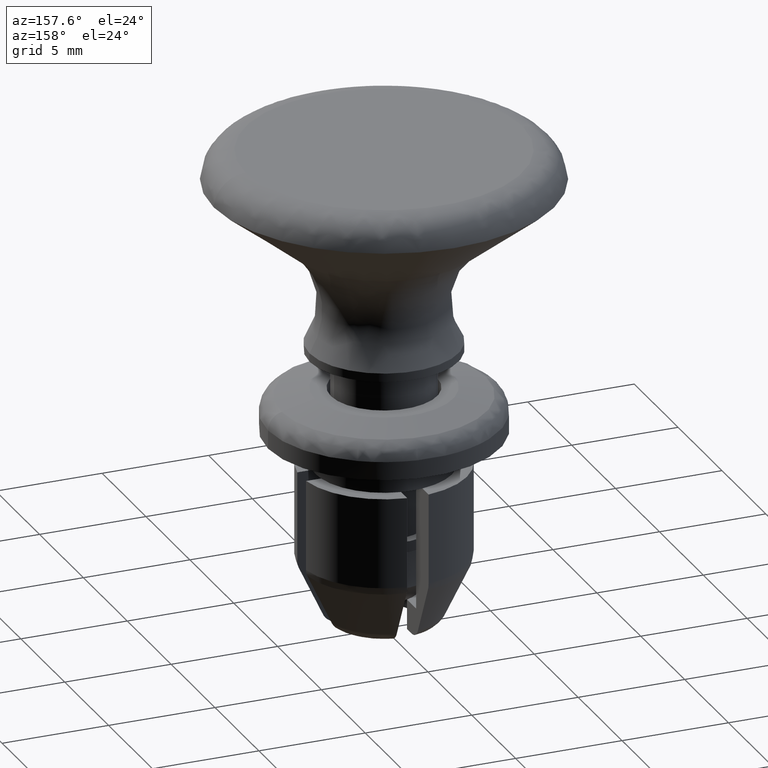
[diagram: clean part render]
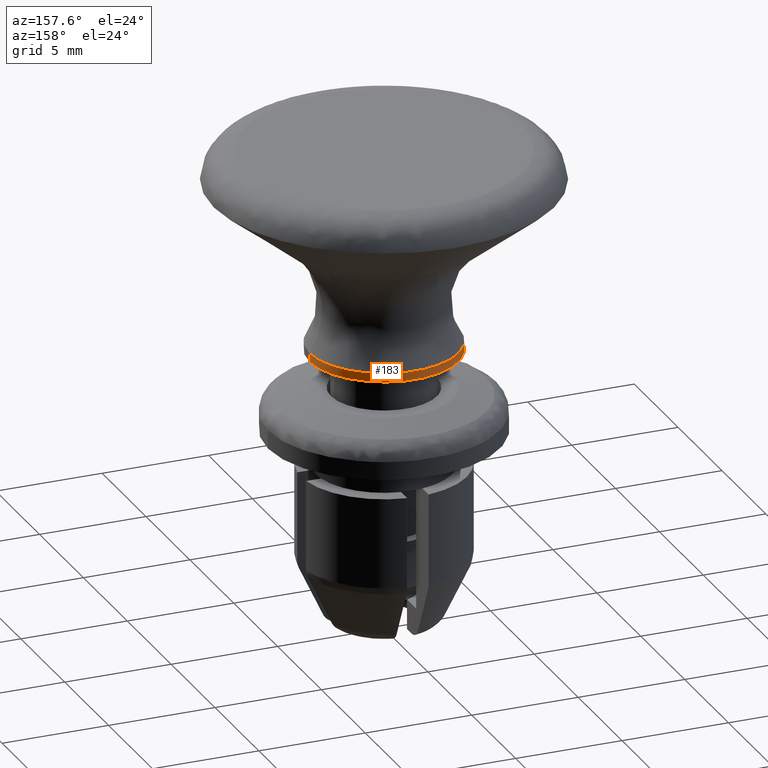
[diagram: same view with one face highlighted and labeled with its STEP entity id]
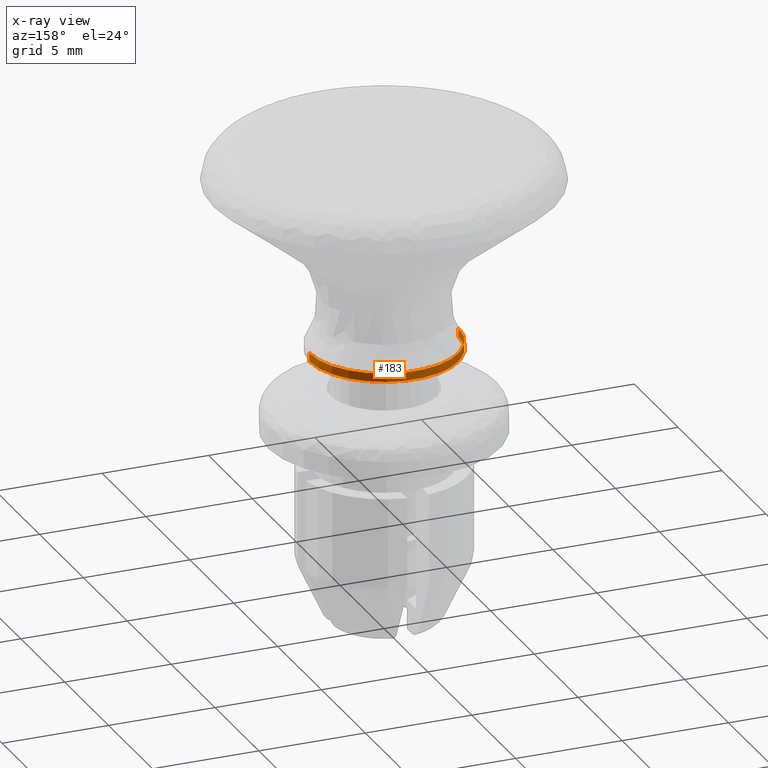
[diagram: x-ray of the same camera — body ghosted, the highlighted face saturated]
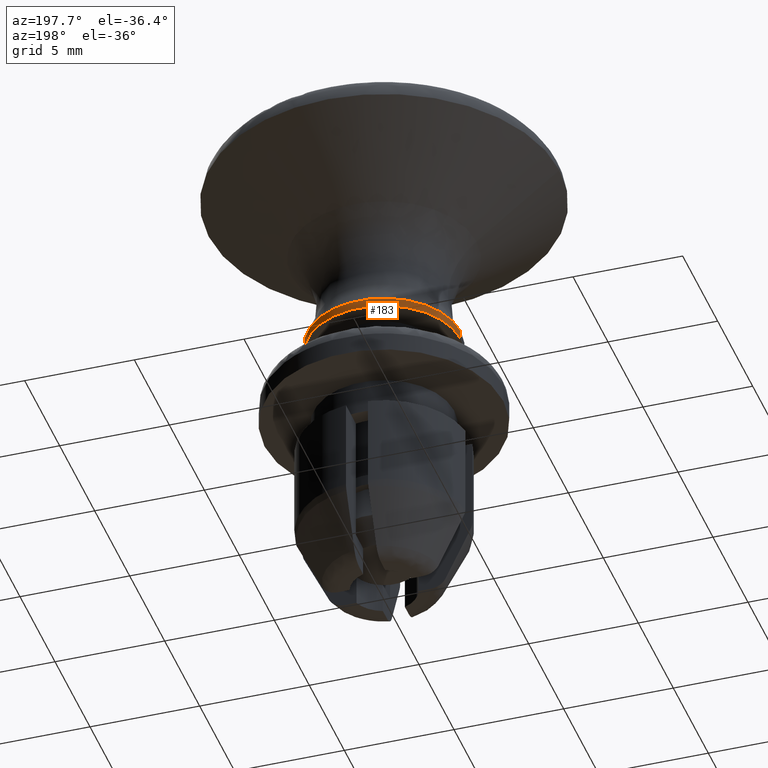
[diagram: same view with one face highlighted and labeled with its STEP entity id]
A machine part, auxiliary view. The second image highlights one B-rep face of the part: STEP entity #183.
The next image is the same camera in x-ray: the body ghosted, the highlighted face saturated — about 0% of this face is hidden behind the body in this view.
A second angle (auxiliary view) of the same face is appended — the face is thin or edge-on in the first view.
In plain terms, the highlighted cylindrical surface (partial cylindrical patch) has radius 3.5 mm, axis along (0, 0, 1).
Its self-contained STEP definition (entity closure, byte-faithful):
#183=ADVANCED_FACE('',(#909),#908,.T.);
#908=CYLINDRICAL_SURFACE('',#1533,3.50000000000E+00);
#909=FACE_OUTER_BOUND('',#1534,.T.);
#1530=CARTESIAN_POINT('',(0.00000000000E+00,0.00000000000E+00,0.00000000000E+00));
#1531=DIRECTION('',(-0.00000000000E+00,-0.00000000000E+00,1.00000000000E+00));
#1532=DIRECTION('',(1.00000000000E+00,-0.00000000000E+00,-0.00000000000E+00));
#1533=AXIS2_PLACEMENT_3D('',#1530,#1531,#1532);
#1534=EDGE_LOOP('',(#2012,#2013,#2014,#2015));
#2012=ORIENTED_EDGE('',*,*,#2234,.T.);
#2013=ORIENTED_EDGE('',*,*,#2235,.F.);
#2014=ORIENTED_EDGE('',*,*,#2214,.F.);
#2015=ORIENTED_EDGE('',*,*,#2236,.T.);
#2214=EDGE_CURVE('',#3330,#3331,#3332,.T.);
#2234=EDGE_CURVE('',#3460,#3461,#3462,.T.);
#2235=EDGE_CURVE('',#3331,#3461,#3468,.T.);
#2236=EDGE_CURVE('',#3330,#3460,#3474,.T.);
#3330=VERTEX_POINT('',#4276);
#3331=VERTEX_POINT('',#4277);
#3332=CIRCLE('',#4281,3.50000000000E+00);
#3460=VERTEX_POINT('',#4346);
#3461=VERTEX_POINT('',#4347);
#3462=CIRCLE('',#4351,3.50000000000E+00);
#3468=(BOUNDED_CURVE() B_SPLINE_CURVE(1,(#4352,#4353),.UNSPECIFIED.,.F.,.F.) B_SPLINE_CURVE_WITH_KNOTS((2,2),(8.33332538610E-02,9.16666666064E-01),.UNSPECIFIED.) CURVE() GEOMETRIC_REPRESENTATION_ITEM() RATIONAL_B_SPLINE_CURVE((1.00000000000E+00,1.00000000000E+00)) REPRESENTATION_ITEM('') );
#3474=(BOUNDED_CURVE() B_SPLINE_CURVE(1,(#4354,#4355),.UNSPECIFIED.,.F.,.F.) B_SPLINE_CURVE_WITH_KNOTS((2,2),(8.33333333333E-02,9.16666666667E-01),.UNSPECIFIED.) CURVE() GEOMETRIC_REPRESENTATION_ITEM() RATIONAL_B_SPLINE_CURVE((7.50000000000E-01,7.50000000000E-01)) REPRESENTATION_ITEM('') );
#4276=CARTESIAN_POINT('',(-3.50000000000E+00,0.00000000000E+00,-9.50000000000E+00));
#4277=CARTESIAN_POINT('',(3.50000000000E+00,1.48029736617E-16,-9.50000000000E+00));
#4278=CARTESIAN_POINT('',(0.00000000000E+00,0.00000000000E+00,-9.50000000000E+00));
#4279=DIRECTION('',(-0.00000000000E+00,0.00000000000E+00,-1.00000000000E+00));
#4280=DIRECTION('',(-1.00000000000E+00,-1.22460635382E-16,0.00000000000E+00));
#4281=AXIS2_PLACEMENT_3D('',#4278,#4279,#4280);
#4346=CARTESIAN_POINT('',(-3.50000000000E+00,0.00000000000E+00,-9.10059179423E+00));
#4347=CARTESIAN_POINT('',(3.50000000000E+00,1.48029736617E-16,-9.10059179423E+00));
#4348=CARTESIAN_POINT('',(0.00000000000E+00,0.00000000000E+00,-9.10059179423E+00));
#4349=DIRECTION('',(-0.00000000000E+00,0.00000000000E+00,-1.00000000000E+00));
#4350=DIRECTION('',(-1.00000000000E+00,-1.22460635382E-16,0.00000000000E+00));
#4351=AXIS2_PLACEMENT_3D('',#4348,#4349,#4350);
#4352=CARTESIAN_POINT('',(3.50000000000E+00,0.00000000000E+00,-9.50000003809E+00));
#4353=CARTESIAN_POINT('',(3.50000000000E+00,0.00000000000E+00,-9.10059179452E+00));
#4354=CARTESIAN_POINT('',(-3.50000000000E+00,0.00000000000E+00,-9.50000000000E+00));
#4355=CARTESIAN_POINT('',(-3.50000000000E+00,0.00000000000E+00,-9.10059179423E+00));